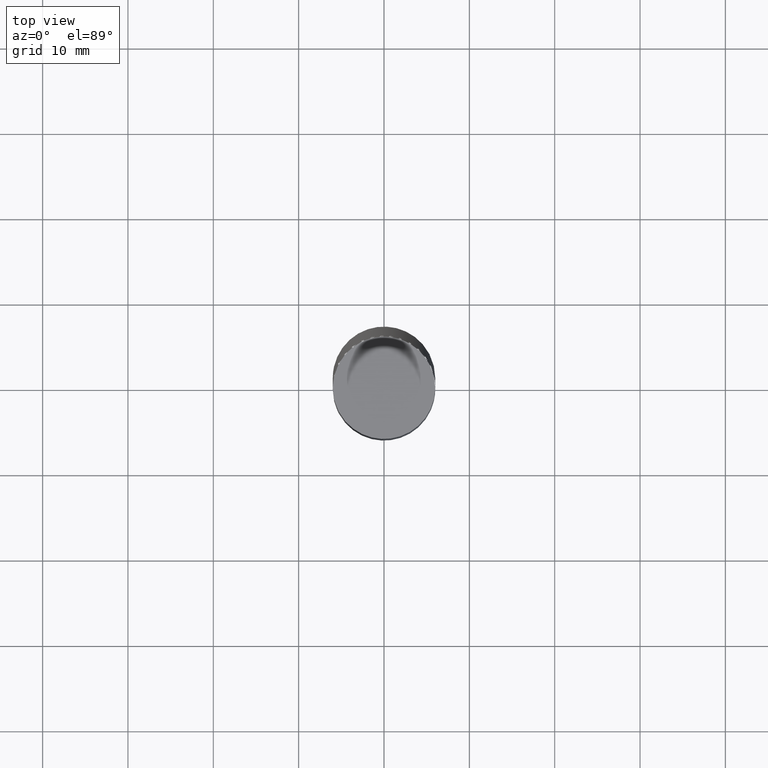
[diagram: clean part render]
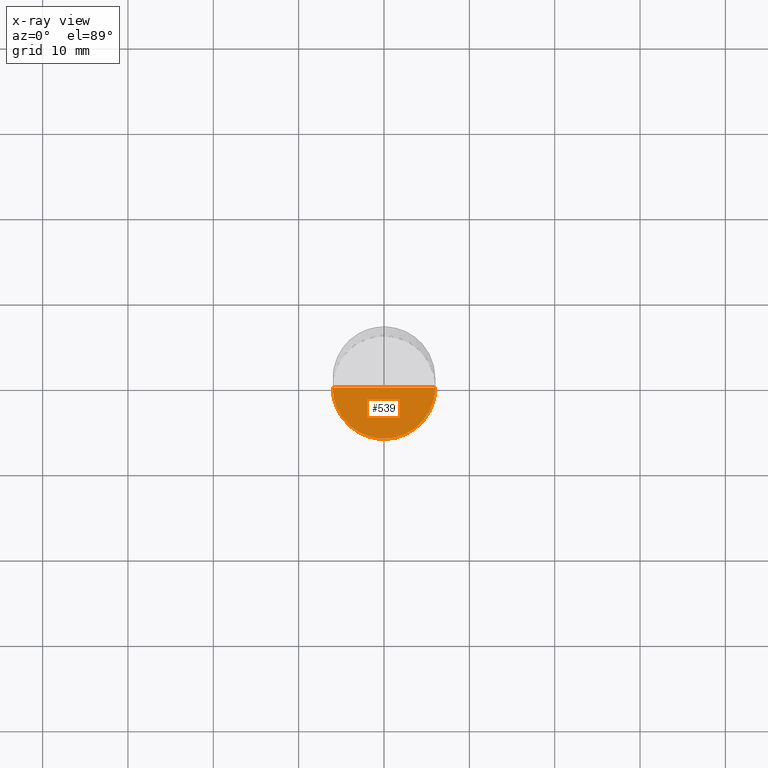
[diagram: x-ray — body ghosted, one internal face saturated and labeled with its STEP entity id]
A machine part, top view, then the same camera in x-ray: the body is ghosted and one INTERNAL B-rep face — a face not visible from any outside direction — is saturated and labeled: STEP entity #539.
In plain terms, the highlighted face is a freeform B-spline surface patch.
Its self-contained STEP definition (entity closure, byte-faithful):
#391=CARTESIAN_POINT('',(6.0,0.0,-5.0));
#395=CARTESIAN_POINT('',(-6.0,0.0,-5.0));
#396=CARTESIAN_POINT('',(0.0,0.0,-5.0));
#403=CARTESIAN_POINT('',(-6.0,-6.0,-5.0));
#404=CARTESIAN_POINT('',(0.0,-6.0,-5.0));
#405=CARTESIAN_POINT('',(6.0,-6.0,-5.0));
#524=(
BOUNDED_SURFACE()
B_SPLINE_SURFACE(1,2,(
(#395,#403,#404,#405,#391),
(#396,#396,#396,#396,#396)
), .UNSPECIFIED.,.F.,.F.,.F.)
B_SPLINE_SURFACE_WITH_KNOTS((2,2),(3,2,3),(
0.0,1.0),(
0.0,0.5,1.0), .UNSPECIFIED.)
GEOMETRIC_REPRESENTATION_ITEM()
RATIONAL_B_SPLINE_SURFACE(((1.0,0.707106781187,1.0,0.707106781187,1.0),
(1.0,0.707106781187,1.0,0.707106781187,1.0)
))
REPRESENTATION_ITEM('')
SURFACE()
);
#525=(
BOUNDED_CURVE()
B_SPLINE_CURVE(2,(#391,#405,#404,#403,#395),.UNSPECIFIED.,.F.,.F.)
B_SPLINE_CURVE_WITH_KNOTS((3,2,3),
(0.0,0.5,1.0),.UNSPECIFIED.)
CURVE()
GEOMETRIC_REPRESENTATION_ITEM()
RATIONAL_B_SPLINE_CURVE((1.0,0.707106781187,1.0,0.707106781187,1.0))
REPRESENTATION_ITEM('')
);
#526=(
BOUNDED_CURVE()
B_SPLINE_CURVE(1,(#395,#396),.UNSPECIFIED.,.F.,.F.)
B_SPLINE_CURVE_WITH_KNOTS((2,2),
(0.0,1.0),.UNSPECIFIED.)
CURVE()
GEOMETRIC_REPRESENTATION_ITEM()
RATIONAL_B_SPLINE_CURVE((1.0,1.0))
REPRESENTATION_ITEM('')
);
#527=(
BOUNDED_CURVE()
B_SPLINE_CURVE(1,(#396,#391),.UNSPECIFIED.,.F.,.F.)
B_SPLINE_CURVE_WITH_KNOTS((2,2),
(0.0,1.0),.UNSPECIFIED.)
CURVE()
GEOMETRIC_REPRESENTATION_ITEM()
RATIONAL_B_SPLINE_CURVE((1.0,1.0))
REPRESENTATION_ITEM('')
);
#528=VERTEX_POINT('',#391);
#529=VERTEX_POINT('',#395);
#530=VERTEX_POINT('',#396);
#531=EDGE_CURVE('',#528,#529,#525,.T.);
#532=EDGE_CURVE('',#529,#530,#526,.T.);
#533=EDGE_CURVE('',#530,#528,#527,.T.);
#534=ORIENTED_EDGE('',*,*,#531,.T.);
#535=ORIENTED_EDGE('',*,*,#532,.T.);
#536=ORIENTED_EDGE('',*,*,#533,.T.);
#537=EDGE_LOOP('',(#534,#535,#536));
#538=FACE_OUTER_BOUND('',#537,.T.);
#539=ADVANCED_FACE('',(#538),#524,.T.);